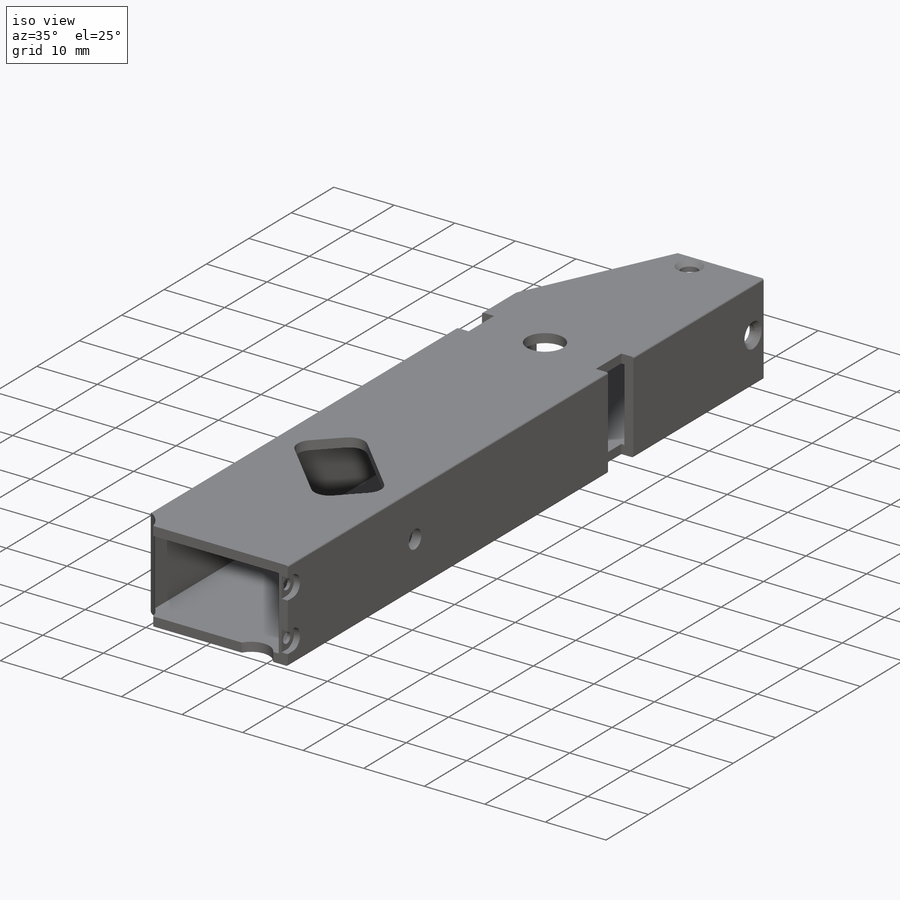
[diagram: iso view]
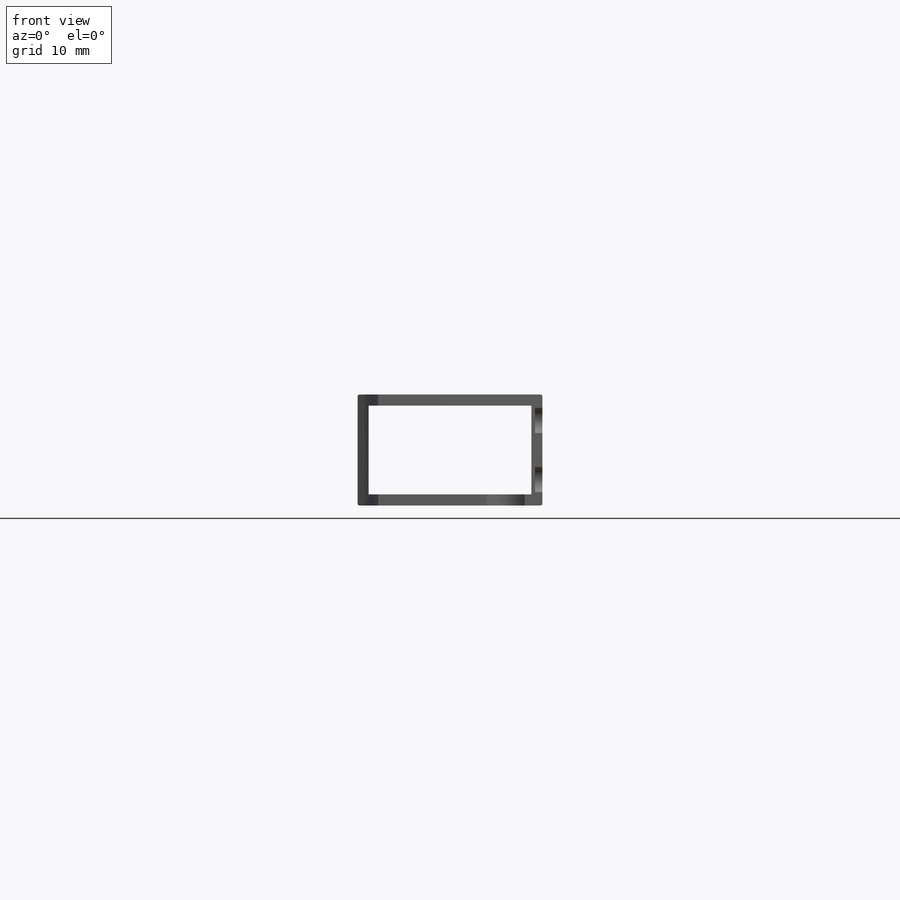
[diagram: front view]
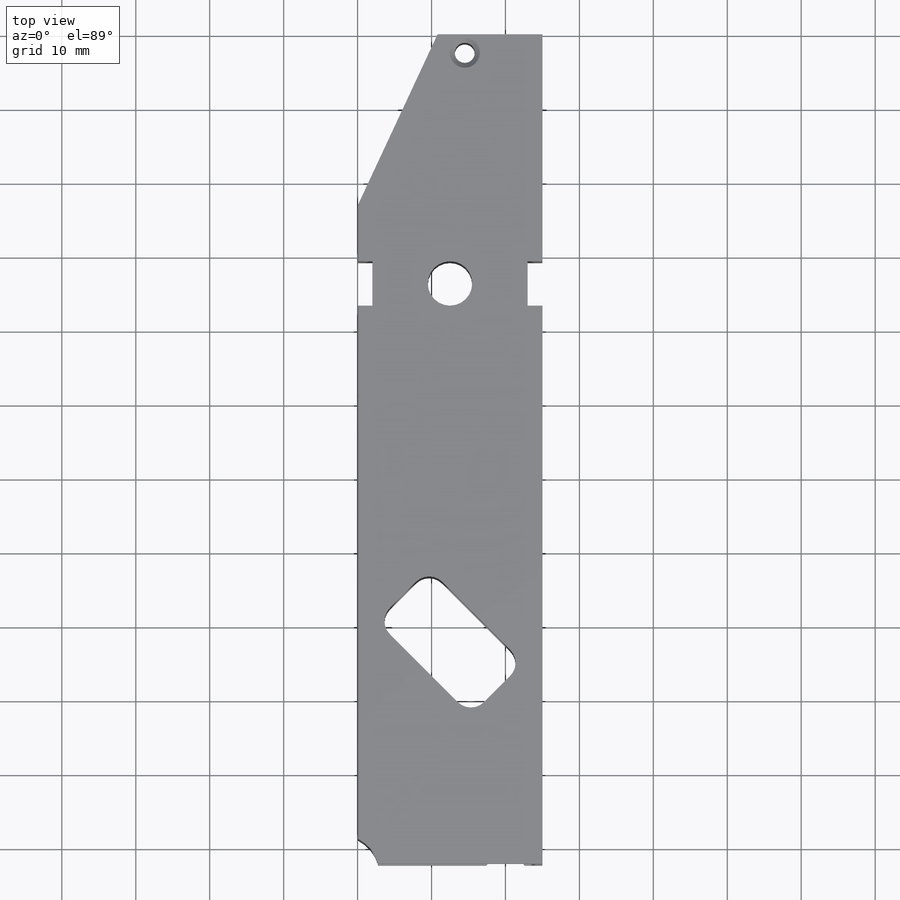
[diagram: top view]
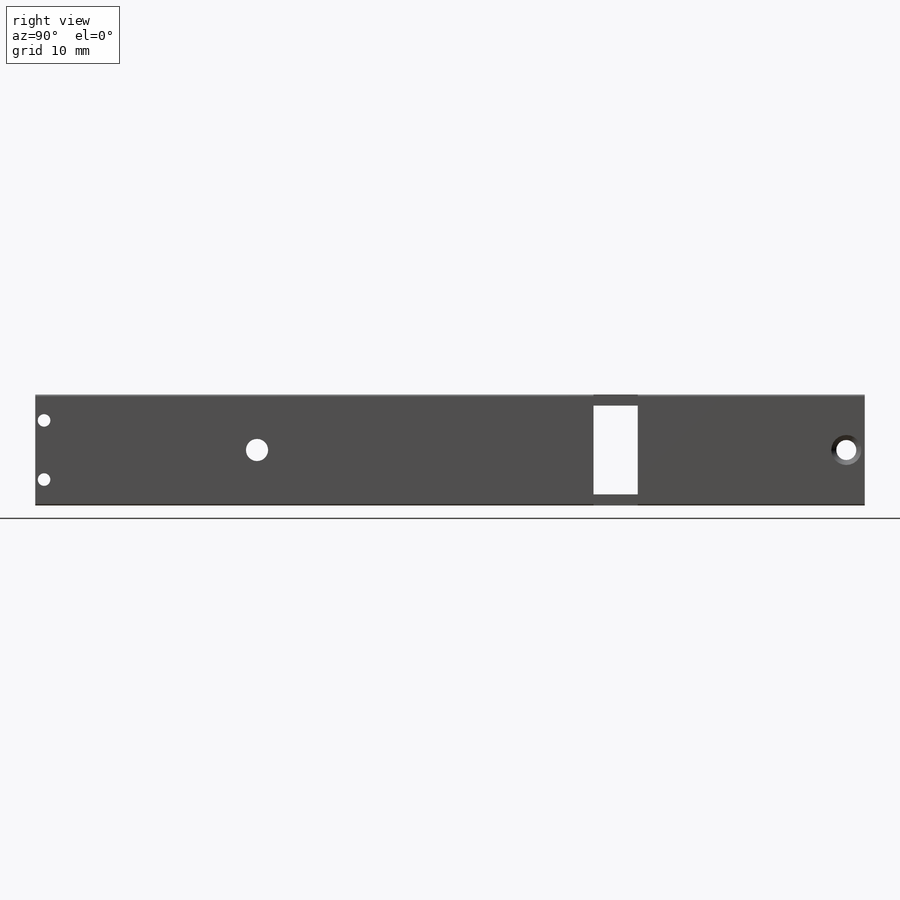
[diagram: right view]
SOLIDWORKS PART (.sldprt)
format: sldprt  version: not decoded by parser v0  size: 584,192 bytes
history: native  units: mm
features: sketch x77, hole x20, cut_extrude x6, chamfer x5, extrude x2, plane x2, thread x2, material x1 (+14 scaffold rows collapsed)
feature tree (129):
  scaffold x14  (default folders/planes/origin — collapsed)
  material  "6063-T1"
  sketch  "Эскиз1"  dims[D7=0.25mm D1=25.0mm D2=15.0mm D3=1.5mm D4=1.5mm D5=1.5mm D6=1.5mm]
  extrude  "Вытянуть1"  Depth=112.2mm
  sketch  "Эскиз2"  dims[c1.D4=2.5mm c1.D11=6.0mm c1.D1=~17.296512mm c2.D1=45.0deg c2.D2=18.0mm c2.D3=10.0mm c2.D5=30.0mm c2.D6=12.5mm c2.D7=6.0mm c2.D8=2.0mm c2.D9=48.5mm c2.D10=3.0mm c3.D5=82.2mm]
  cut_extrude  "Вырез-Вытянуть1"  [1 undecoded]
  sketch  "Эскиз3"  dims[c1.D1=3.0mm c1.D2=3.0mm c1.D3=3.0mm c2.D2=8.0mm c2.D3=2.0mm c2.D4=6.0mm c2.D5=47.25mm c3.D2=45.5mm c3.D3=7.5mm]
  cut_extrude  "Вырез-Вытянуть2"  [1 undecoded]
  sketch  "Эскиз4"  dims[c1.D1=~10.073302mm c1.D2=~10.073302mm c1.D3=10.0mm c2.D1=12.5mm c2.D2=6.0mm]
  cut_extrude  "Вырез-Вытянуть3"  [1 undecoded]
  chamfer  "Фаска2"  Distance=0.5mm Angle=25deg
  plane  "Плоскость1"
  plane  "Плоскость2"
  sketch  "Эскиз5"  dims[c1.D3=3.0mm c1.D1=~3.967377mm c1.D2=2.0mm c2.D1=1.0mm c2.D2=1.5mm]
  cut_extrude  "Вырез-Вытянуть4"  [1 undecoded]
  sketch  "Эскиз6"  dims[c1.D1=~23.677747mm c2.D1=65.0deg c2.D2=10.5mm c2.D3=0.5mm c2.D4=0.3mm c2.D5=24.5mm c3.D2=9.8mm c3.D3=5.0mm]
  chamfer  "Вырез-Вытянуть5"  [1 undecoded]
  hole  "Зенковка для  винта с плоской головкой #2(100)2"  [1 undecoded]
  sketch  "Трехмерный эскиз1"  dims[D1=2.5mm D2=2.5mm D3=2.5mm D4=9.0mm D5=9.0mm D6=7.5mm]
  sketch  "Эскиз8"  dims[hole-wizard template sketch: 54 standard entries collapsed; hole parameters kept: c17.Диаметр сквозного отверстия=2.7051mm c17.Глубина сквозного отверстия=1.5mm c17.Диаметр передней зенковки=4.064mm c17.D4=~3.666174mm c17.Угол передней зенковки=90.0deg]
  sketch  "Material_Int"
  sketch  "Material_Ext"
  sketch  "Surface"
  sketch  "Material_Int"
  sketch  "Material_Ext"
  hole  "OptisFaceAttribut_1"  [1 undecoded]
  sketch  "Surface"
  sketch  "Material_Int"
  sketch  "Material_Ext"
  hole  "OptisFaceAttribut_2"  [1 undecoded]
  sketch  "Surface"
  sketch  "Material_Int"
  sketch  "Material_Ext"
  hole  "OptisFaceAttribut_3"  [1 undecoded]
  sketch  "Surface"
  sketch  "Material_Int"
  sketch  "Material_Ext"
  hole  "OptisFaceAttribut_4"  [1 undecoded]
  sketch  "Surface"
  sketch  "Material_Int"
  sketch  "Material_Ext"
  hole  "OptisFaceAttribut_5"  [1 undecoded]
  sketch  "Surface"
  sketch  "Material_Int"
  sketch  "Material_Ext"
  hole  "OptisFaceAttribut_6"  [1 undecoded]
  sketch  "Surface"
  sketch  "Material_Int"
  sketch  "Material_Ext"
  hole  "OptisFaceAttribut_7"  [1 undecoded]
  sketch  "Surface"
  sketch  "Material_Int"
  sketch  "Material_Ext"
  hole  "OptisFaceAttribut_8"  [1 undecoded]
  sketch  "Surface"
  sketch  "Material_Int"
  sketch  "Material_Ext"
  hole  "OptisFaceAttribut_9"  [1 undecoded]
  sketch  "Surface"
  sketch  "Material_Int"
  sketch  "Material_Ext"
  hole  "OptisFaceAttribut_10"  [1 undecoded]
  sketch  "Surface"
  sketch  "Material_Int"
  sketch  "Material_Ext"
  hole  "OptisFaceAttribut_11"  [1 undecoded]
  sketch  "Surface"
  sketch  "Material_Int"
  sketch  "Material_Ext"
  hole  "OptisFaceAttribut_12"  [1 undecoded]
  sketch  "Surface"
  sketch  "Material_Int"
  sketch  "Material_Ext"
  hole  "OptisFaceAttribut_13"  [1 undecoded]
  sketch  "Surface"
  sketch  "Material_Int"
  sketch  "Material_Ext"
  hole  "OptisFaceAttribut_14"  [1 undecoded]
  sketch  "Surface"
  sketch  "Material_Int"
  sketch  "Material_Ext"
  hole  "OptisFaceAttribut_15"  [1 undecoded]
  sketch  "Surface"
  sketch  "Material_Int"
  sketch  "Material_Ext"
  hole  "OptisFaceAttribut_16"  [1 undecoded]
  sketch  "Surface"
  sketch  "Material_Int"
  sketch  "Material_Ext"
  hole  "OptisFaceAttribut_17"  [1 undecoded]
  sketch  "Surface"
  sketch  "Material_Int"
  sketch  "Material_Ext"
  hole  "OptisFaceAttribut_18"  [1 undecoded]
  sketch  "Surface"
  sketch  "Material_Int"
  sketch  "Material_Ext"
  hole  "OptisFaceAttribut_19"  [1 undecoded]
  sketch  "Surface"
  sketch  "Material_Int"
  sketch  "Material_Ext"
  extrude  "Отверстие обработанное метчиком #2-561"  [1 undecoded]
  sketch  "Эскиз10"  dims[D1=3.0mm D2=4.5mm D3=18.5mm D4=8.0mm]
  sketch  "Эскиз9"  dims[hole-wizard template sketch: 59 standard entries collapsed; hole parameters kept: c18.Диаметр проходного сверла=1.778mm c18.Глубина проходного сверла=1.5mm]
  thread  "Отверстие резьбы5"  Diameter=1.5mm  [1 undecoded]
  thread  "Отверстие резьбы6"  Diameter=1.5mm  [1 undecoded]
  sketch  "Эскиз11"  dims[D1=4.0mm]
  chamfer  "Вырез-Вытянуть6"  [1 undecoded]
  sketch  "Эскиз12"  dims[c1.D1=11.0mm c1.D2=12.0mm c1.D3=12.0mm c2.D2=1.5mm c2.D3=2.5mm]
  cut_extrude  "Вырез-Вытянуть7"  [1 undecoded]
  sketch  "Эскиз13"  dims[c1.D1=1.7mm c1.D2=2.3mm c1.D3=1.7mm c1.D4=2.3mm c1.D5=2.3mm c2.D2=1.2mm c2.D4=8.0mm c2.D5=3.5mm]
  chamfer  "Вырез-Вытянуть8"  [1 undecoded]
  chamfer  "Вырез-Вытянуть9"  [1 undecoded]
  sketch  "Эскиз13<3>"  dims[D1=1.0mm]
  sketch  "Эскиз14"  dims[c1.D1=~2.625775mm c1.D2=3.0mm c1.D3=3.0mm c2.D1=1.5mm c2.D3=5.0mm]
  cut_extrude  "Вырез-Вытянуть10"  [1 undecoded]
decode coverage: 19 of 112 modeling features carry decoded parameters
note: ~ marks probable driven/reference dimensions
note: 33 parameter values undecoded
summary: no parameter record found for 31 features
note: suppression state not decoded; provenance and decode notes live in map.json
